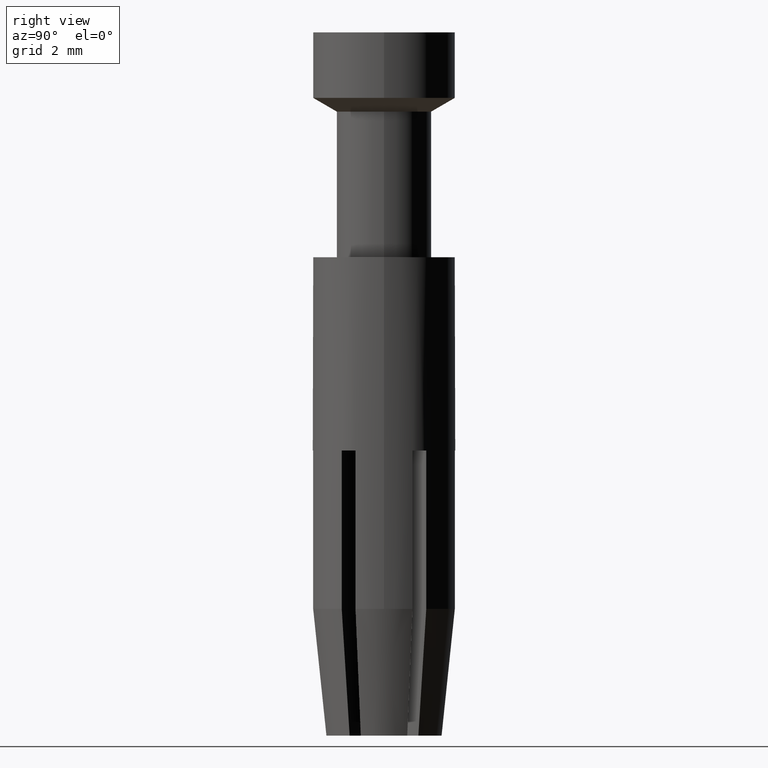
[diagram: clean part render]
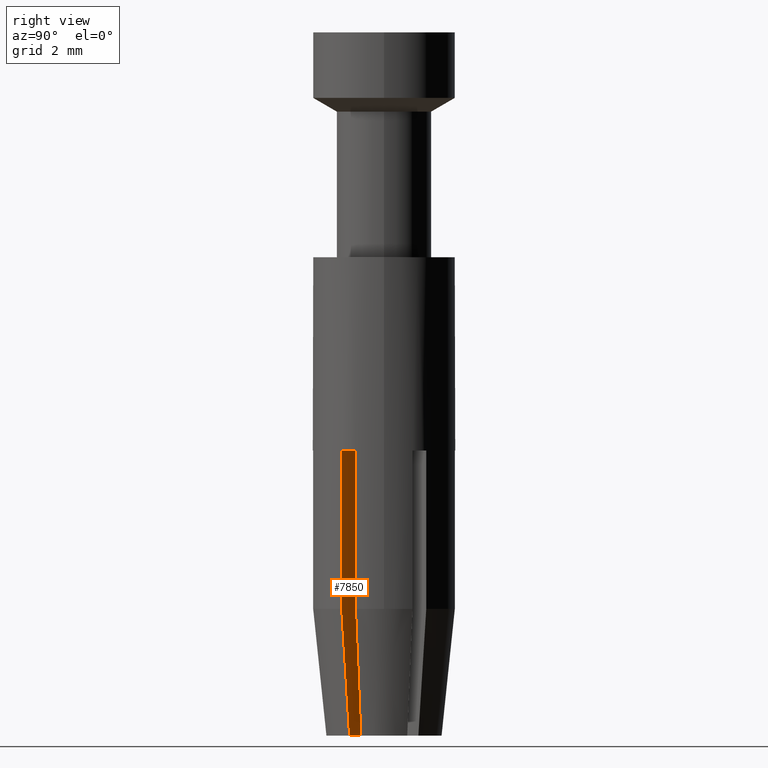
[diagram: same view with one face highlighted and labeled with its STEP entity id]
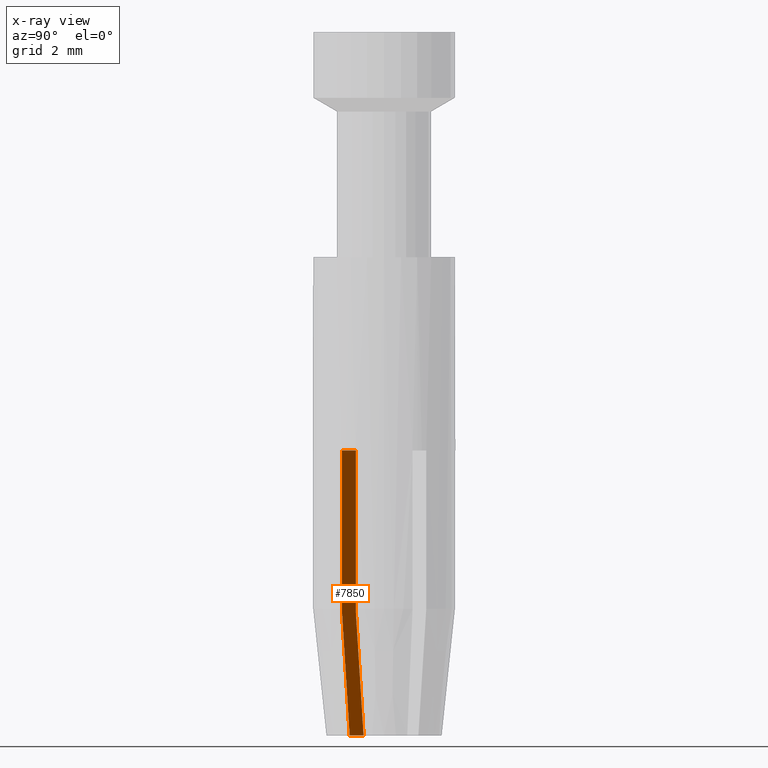
[diagram: x-ray of the same camera — body ghosted, the highlighted face saturated]
A machine part, right view. The second image highlights one B-rep face of the part: STEP entity #7850.
The next image is the same camera in x-ray: the body ghosted, the highlighted face saturated — about 0% of this face is hidden behind the body in this view.
In plain terms, the highlighted planar face has unit normal (-0.5931, -0.8051, -0).
Its self-contained STEP definition (entity closure, byte-faithful):
#380=CARTESIAN_POINT('',(28.9390643268963,40.839509660304,18.5));
#390=VERTEX_POINT('',#380);
#420=CARTESIAN_POINT('',(28.9390643268963,40.839509660304,27.5));
#430=DIRECTION('',(0.,0.,-1.));
#440=VECTOR('',#430,1.);
#450=LINE('',#420,#440);
#460=CARTESIAN_POINT('',(28.9390643268963,40.839509660304,
23.4999999999999));
#470=VERTEX_POINT('',#460);
#480=EDGE_CURVE('',#470,#390,#450,.T.);
#3560=CARTESIAN_POINT('',(30.0711516509481,41.6735274062521,18.5));
#3570=DIRECTION('',(-0.805107410268315,-0.59312903986489,0.));
#3580=VECTOR('',#3570,1.);
#3590=LINE('',#3560,#3580);
#3600=CARTESIAN_POINT('',(29.5428948845975,41.2843564402027,18.5));
#3610=VERTEX_POINT('',#3600);
#3620=EDGE_CURVE('',#3610,#390,#3590,.T.);
#6860=CARTESIAN_POINT('',(29.5428948845975,41.2843564402027,
23.5699724410222));
#6870=VERTEX_POINT('',#6860);
#6900=CARTESIAN_POINT('',(29.5428948845975,41.2843564402027,
20.284986220511));
#6910=DIRECTION('',(0.,0.,-1.));
#6920=VECTOR('',#6910,1.);
#6930=LINE('',#6900,#6920);
#6940=EDGE_CURVE('',#6870,#3610,#6930,.T.);
#7530=CARTESIAN_POINT('',(28.9390643268963,40.839509660304,27.5));
#7540=DIRECTION('',(0.59312903986489,-0.805107410268315,0.));
#7550=DIRECTION('',(-0.805107410268315,-0.59312903986489,0.));
#7560=AXIS2_PLACEMENT_3D('',#7530,#7540,#7550);
#7570=PLANE('',#7560);
#7580=CARTESIAN_POINT('',(32.3767343945381,43.3720685718077,27.5));
#7590=DIRECTION('',(-0.805107410268315,-0.59312903986489,0.));
#7600=VECTOR('',#7590,1.);
#7610=LINE('',#7580,#7600);
#7620=CARTESIAN_POINT('',(29.8754545973892,41.5293558286447,27.5));
#7630=VERTEX_POINT('',#7620);
#7640=CARTESIAN_POINT('',(29.2775451215482,41.0888711568995,27.5));
#7650=VERTEX_POINT('',#7640);
#7660=EDGE_CURVE('',#7630,#7650,#7610,.T.);
#7670=ORIENTED_EDGE('',*,*,#7660,.F.);
#7680=CARTESIAN_POINT('',(28.6295896100057,40.6115171721581,
19.8427795989566));
#7690=DIRECTION('',(-0.0841566403607472,-0.0619988670564958,
-0.994521895368273));
#7700=VECTOR('',#7690,25.2026029188254);
#7710=LINE('',#7680,#7700);
#7720=EDGE_CURVE('',#7650,#470,#7710,.T.);
#7730=ORIENTED_EDGE('',*,*,#7720,.F.);
#7740=ORIENTED_EDGE('',*,*,#480,.F.);
#7750=ORIENTED_EDGE('',*,*,#3620,.T.);
#7760=ORIENTED_EDGE('',*,*,#6940,.T.);
#7770=CARTESIAN_POINT('',(29.8246824781914,41.4919516041554,26.9));
#7780=DIRECTION('',(-0.084156640360748,-0.0619988670564967,
-0.994521895368273));
#7790=VECTOR('',#7780,1.);
#7800=LINE('',#7770,#7790);
#7810=EDGE_CURVE('',#7630,#6870,#7800,.T.);
#7820=ORIENTED_EDGE('',*,*,#7810,.T.);
#7830=EDGE_LOOP('',(#7820,#7760,#7750,#7740,#7730,#7670));
#7840=FACE_OUTER_BOUND('',#7830,.T.);
#7850=ADVANCED_FACE('',(#7840),#7570,.F.);